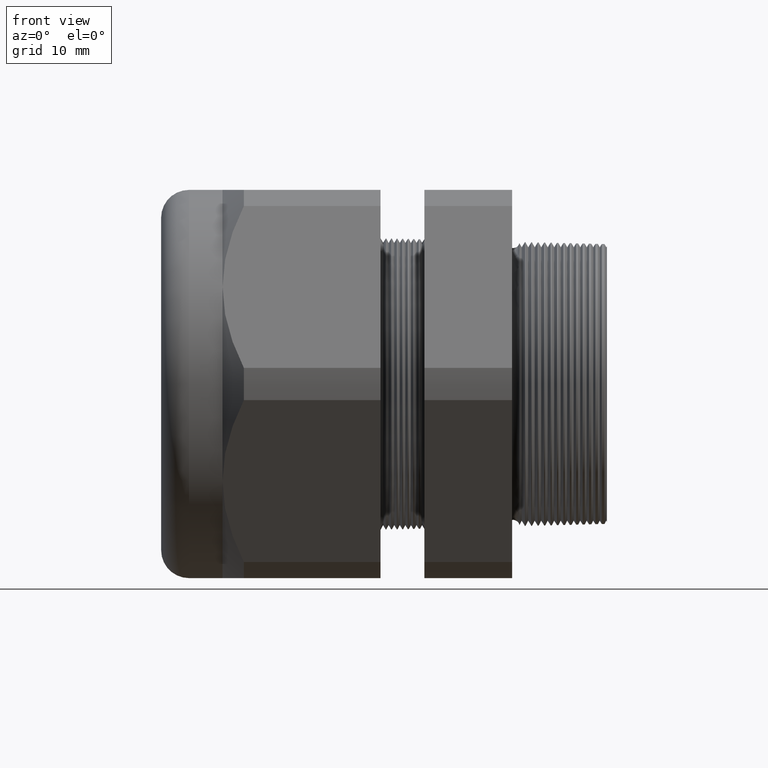
[diagram: clean part render]
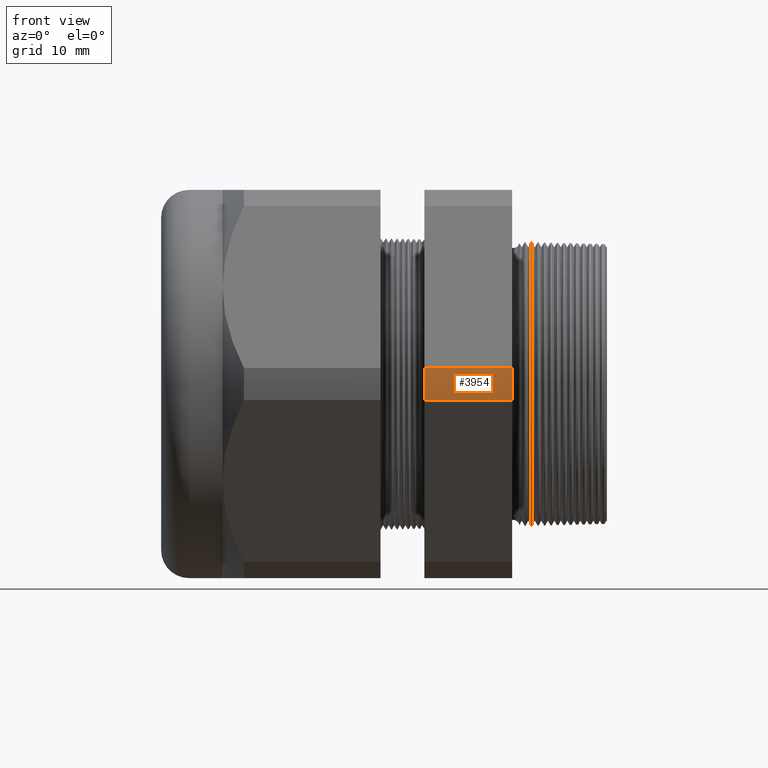
[diagram: same view with one face highlighted and labeled with its STEP entity id]
A machine part, front view. The second image highlights one B-rep face of the part: STEP entity #3954.
In plain terms, the highlighted cylindrical surface (partial cylindrical patch) has radius 29.4627 mm, axis along (-1, 0, 0).
Its self-contained STEP definition (entity closure, byte-faithful):
#940 = CARTESIAN_POINT ( 'NONE',  ( -0.7824399999999999100, -1.156720106887057800, -0.08650200473511310300 ) ) ;
#983 = DIRECTION ( 'NONE',  ( 0.0000000000000000000, 0.0000000000000000000, 1.000000000000000000 ) ) ;
#984 = DIRECTION ( 'NONE',  ( -1.000000000000000000, 0.0000000000000000000, 0.0000000000000000000 ) ) ;
#985 = CARTESIAN_POINT ( 'NONE',  ( -0.7824399999999999100, 0.0000000000000000000, 0.0000000000000000000 ) ) ;
#986 = AXIS2_PLACEMENT_3D ( 'NONE', #985, #984, #983 ) ;
#987 = CIRCLE ( 'NONE', #986, 1.159950000000000000 ) ;
#988 = CARTESIAN_POINT ( 'NONE',  ( -0.7824399999999999100, -1.156720106887058100, 0.08650200473511256100 ) ) ;
#1231 = DIRECTION ( 'NONE',  ( -1.000000000000000000, 0.0000000000000000000, 0.0000000000000000000 ) ) ;
#1232 = VECTOR ( 'NONE', #1231, 39.37007874015748100 ) ;
#1233 = CARTESIAN_POINT ( 'NONE',  ( 0.2000000000000000400, -1.156720106887058100, 0.08650200473511256100 ) ) ;
#1234 = LINE ( 'NONE', #1233, #1232 ) ;
#1243 = DIRECTION ( 'NONE',  ( 0.0000000000000000000, 0.0000000000000000000, 1.000000000000000000 ) ) ;
#1244 = DIRECTION ( 'NONE',  ( -1.000000000000000000, 0.0000000000000000000, 0.0000000000000000000 ) ) ;
#1245 = CARTESIAN_POINT ( 'NONE',  ( 0.2000000000000000400, 0.0000000000000000000, 0.0000000000000000000 ) ) ;
#1246 = AXIS2_PLACEMENT_3D ( 'NONE', #1245, #1244, #1243 ) ;
#1248 = CYLINDRICAL_SURFACE ( 'NONE', #1246, 1.159950000000000000 ) ;
#1249 = FACE_OUTER_BOUND ( 'NONE', #3959, .T. ) ;
#1250 = DIRECTION ( 'NONE',  ( -1.000000000000000000, 0.0000000000000000000, 0.0000000000000000000 ) ) ;
#1251 = VECTOR ( 'NONE', #1250, 39.37007874015748100 ) ;
#1252 = CARTESIAN_POINT ( 'NONE',  ( 0.2000000000000000400, -1.156720106887057800, -0.08650200473511310300 ) ) ;
#1253 = LINE ( 'NONE', #1252, #1251 ) ;
#2862 = CARTESIAN_POINT ( 'NONE',  ( -0.3100000000000000000, -1.156720106887057800, -0.08650200473511310300 ) ) ;
#2901 = CARTESIAN_POINT ( 'NONE',  ( -0.3100000000000000000, -1.156720106887058100, 0.08650200473511256100 ) ) ;
#2908 = DIRECTION ( 'NONE',  ( 0.0000000000000000000, 0.0000000000000000000, -1.000000000000000000 ) ) ;
#2909 = DIRECTION ( 'NONE',  ( 1.000000000000000000, 0.0000000000000000000, 0.0000000000000000000 ) ) ;
#2910 = CARTESIAN_POINT ( 'NONE',  ( -0.3100000000000000000, 0.0000000000000000000, 0.0000000000000000000 ) ) ;
#2911 = AXIS2_PLACEMENT_3D ( 'NONE', #2910, #2909, #2908 ) ;
#2912 = CIRCLE ( 'NONE', #2911, 1.159950000000000000 ) ;
#3812 = VERTEX_POINT ( 'NONE', #940 ) ;
#3822 = VERTEX_POINT ( 'NONE', #988 ) ;
#3823 = EDGE_CURVE ( 'NONE', #3812, #3822, #987, .T. ) ;
#3953 = EDGE_CURVE ( 'NONE', #4831, #3812, #1253, .T. ) ;
#3954 = ADVANCED_FACE ( 'NONE', ( #1249 ), #1248, .T. ) ;
#3955 = ORIENTED_EDGE ( 'NONE', *, *, #3823, .F. ) ;
#3956 = ORIENTED_EDGE ( 'NONE', *, *, #3953, .F. ) ;
#3958 = ORIENTED_EDGE ( 'NONE', *, *, #3969, .T. ) ;
#3959 = EDGE_LOOP ( 'NONE', ( #3958, #3955, #3956, #3966 ) ) ;
#3966 = ORIENTED_EDGE ( 'NONE', *, *, #4839, .F. ) ;
#3969 = EDGE_CURVE ( 'NONE', #4845, #3822, #1234, .T. ) ;
#4831 = VERTEX_POINT ( 'NONE', #2862 ) ;
#4839 = EDGE_CURVE ( 'NONE', #4845, #4831, #2912, .T. ) ;
#4845 = VERTEX_POINT ( 'NONE', #2901 ) ;